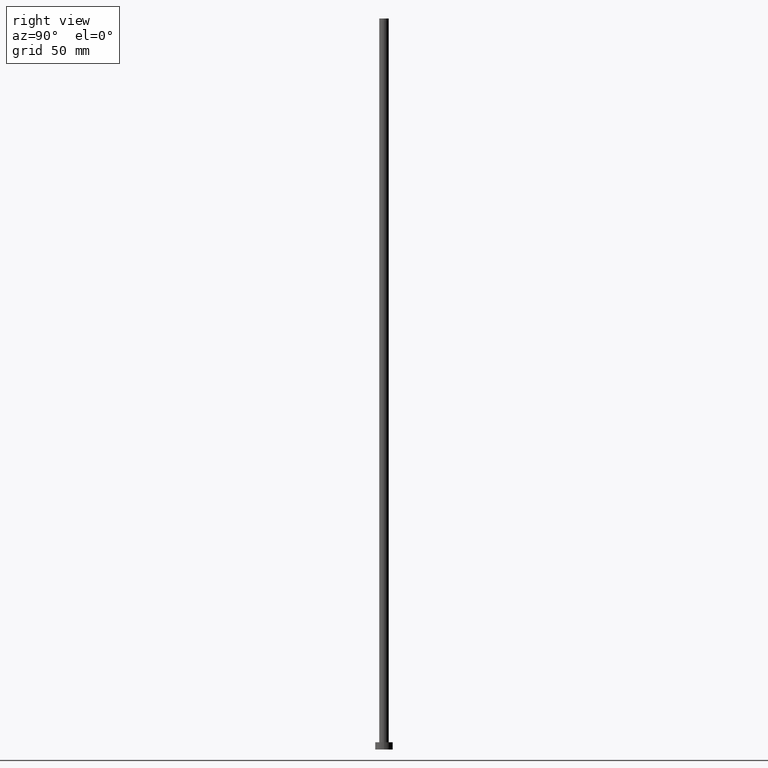
[diagram: clean part render]
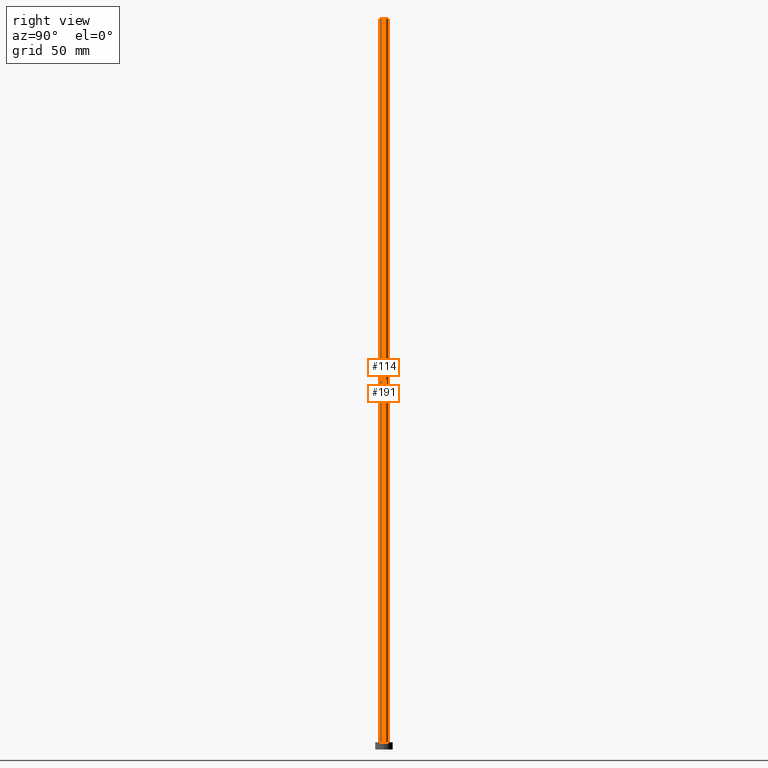
[diagram: same view with one multi-face feature highlighted, each face labeled with its STEP entity id]
A machine part, right view. The highlighted faces form ONE feature: a constant-radius fillet chain: 2 tangent blend faces with common blend radius 3.25 mm. The faces share edges in the B-rep.
Their STEP definitions:
[1] entity #191 (Cylinder):
#3 = VERTEX_POINT ( 'NONE', #56 ) ;
#6 = LINE ( 'NONE', #221, #116 ) ;
#23 = VECTOR ( 'NONE', #172, 1000.000000000000000 ) ;
#36 = VERTEX_POINT ( 'NONE', #40 ) ;
#37 = VERTEX_POINT ( 'NONE', #103 ) ;
#40 = CARTESIAN_POINT ( 'NONE',  ( 3.250000000000000444, 3.980102097228898231E-16, 500.0000000000000000 ) ) ;
#43 = FACE_OUTER_BOUND ( 'NONE', #79, .T. ) ;
#46 = CARTESIAN_POINT ( 'NONE',  ( 0.000000000000000000, 0.000000000000000000, 500.0000000000000000 ) ) ;
#56 = CARTESIAN_POINT ( 'NONE',  ( -3.250000000000000444, 0.000000000000000000, 5.000000000000000000 ) ) ;
#57 = ORIENTED_EDGE ( 'NONE', *, *, #169, .F. ) ;
#63 = CARTESIAN_POINT ( 'NONE',  ( 0.000000000000000000, 0.000000000000000000, 5.000000000000000000 ) ) ;
#66 = CARTESIAN_POINT ( 'NONE',  ( 0.000000000000000000, 0.000000000000000000, 500.0000000000000000 ) ) ;
#77 = AXIS2_PLACEMENT_3D ( 'NONE', #46, #171, #187 ) ;
#79 = EDGE_LOOP ( 'NONE', ( #200, #195, #140, #57 ) ) ;
#83 = DIRECTION ( 'NONE',  ( 1.000000000000000000, 0.000000000000000000, 0.000000000000000000 ) ) ;
#88 = LINE ( 'NONE', #105, #23 ) ;
#103 = CARTESIAN_POINT ( 'NONE',  ( -3.250000000000000444, 0.000000000000000000, 500.0000000000000000 ) ) ;
#105 = CARTESIAN_POINT ( 'NONE',  ( -3.250000000000000444, 0.000000000000000000, 500.0000000000000000 ) ) ;
#107 = DIRECTION ( 'NONE',  ( 0.000000000000000000, 0.000000000000000000, 1.000000000000000000 ) ) ;
#108 = EDGE_CURVE ( 'NONE', #36, #202, #6, .T. ) ;
#116 = VECTOR ( 'NONE', #167, 1000.000000000000000 ) ;
#123 = CARTESIAN_POINT ( 'NONE',  ( 3.250000000000000444, 3.980102097228898231E-16, 5.000000000000000000 ) ) ;
#133 = CIRCLE ( 'NONE', #253, 3.250000000000000444 ) ;
#136 = EDGE_CURVE ( 'NONE', #36, #37, #210, .T. ) ;
#139 = AXIS2_PLACEMENT_3D ( 'NONE', #66, #192, #83 ) ;
#140 = ORIENTED_EDGE ( 'NONE', *, *, #155, .T. ) ;
#155 = EDGE_CURVE ( 'NONE', #202, #3, #133, .T. ) ;
#167 = DIRECTION ( 'NONE',  ( -0.000000000000000000, -0.000000000000000000, -1.000000000000000000 ) ) ;
#169 = EDGE_CURVE ( 'NONE', #37, #3, #88, .T. ) ;
#171 = DIRECTION ( 'NONE',  ( -0.000000000000000000, -0.000000000000000000, -1.000000000000000000 ) ) ;
#172 = DIRECTION ( 'NONE',  ( -0.000000000000000000, -0.000000000000000000, -1.000000000000000000 ) ) ;
#187 = DIRECTION ( 'NONE',  ( -1.000000000000000000, 0.000000000000000000, 0.000000000000000000 ) ) ;
#191 = ADVANCED_FACE ( 'NONE', ( #43 ), #219, .T. ) ;
#192 = DIRECTION ( 'NONE',  ( 0.000000000000000000, 0.000000000000000000, 1.000000000000000000 ) ) ;
#195 = ORIENTED_EDGE ( 'NONE', *, *, #108, .T. ) ;
#200 = ORIENTED_EDGE ( 'NONE', *, *, #136, .F. ) ;
#202 = VERTEX_POINT ( 'NONE', #123 ) ;
#207 = DIRECTION ( 'NONE',  ( 1.000000000000000000, 0.000000000000000000, 0.000000000000000000 ) ) ;
#210 = CIRCLE ( 'NONE', #139, 3.250000000000000444 ) ;
#219 = CYLINDRICAL_SURFACE ( 'NONE', #77, 3.250000000000000444 ) ;
#221 = CARTESIAN_POINT ( 'NONE',  ( 3.250000000000000444, 3.980102097228898231E-16, 500.0000000000000000 ) ) ;
#253 = AXIS2_PLACEMENT_3D ( 'NONE', #63, #107, #207 ) ;
[2] entity #114 (Cylinder):
#3 = VERTEX_POINT ( 'NONE', #56 ) ;
#6 = LINE ( 'NONE', #221, #116 ) ;
#17 = ORIENTED_EDGE ( 'NONE', *, *, #131, .T. ) ;
#18 = AXIS2_PLACEMENT_3D ( 'NONE', #109, #25, #24 ) ;
#23 = VECTOR ( 'NONE', #172, 1000.000000000000000 ) ;
#24 = DIRECTION ( 'NONE',  ( 1.000000000000000000, 0.000000000000000000, 0.000000000000000000 ) ) ;
#25 = DIRECTION ( 'NONE',  ( 0.000000000000000000, 0.000000000000000000, 1.000000000000000000 ) ) ;
#29 = AXIS2_PLACEMENT_3D ( 'NONE', #149, #204, #240 ) ;
#36 = VERTEX_POINT ( 'NONE', #40 ) ;
#37 = VERTEX_POINT ( 'NONE', #103 ) ;
#40 = CARTESIAN_POINT ( 'NONE',  ( 3.250000000000000444, 3.980102097228898231E-16, 500.0000000000000000 ) ) ;
#56 = CARTESIAN_POINT ( 'NONE',  ( -3.250000000000000444, 0.000000000000000000, 5.000000000000000000 ) ) ;
#59 = ORIENTED_EDGE ( 'NONE', *, *, #108, .F. ) ;
#67 = EDGE_CURVE ( 'NONE', #37, #36, #145, .T. ) ;
#73 = DIRECTION ( 'NONE',  ( 1.000000000000000000, 0.000000000000000000, 0.000000000000000000 ) ) ;
#81 = CARTESIAN_POINT ( 'NONE',  ( 0.000000000000000000, 0.000000000000000000, 500.0000000000000000 ) ) ;
#88 = LINE ( 'NONE', #105, #23 ) ;
#103 = CARTESIAN_POINT ( 'NONE',  ( -3.250000000000000444, 0.000000000000000000, 500.0000000000000000 ) ) ;
#105 = CARTESIAN_POINT ( 'NONE',  ( -3.250000000000000444, 0.000000000000000000, 500.0000000000000000 ) ) ;
#108 = EDGE_CURVE ( 'NONE', #36, #202, #6, .T. ) ;
#109 = CARTESIAN_POINT ( 'NONE',  ( 0.000000000000000000, 0.000000000000000000, 5.000000000000000000 ) ) ;
#114 = ADVANCED_FACE ( 'NONE', ( #124 ), #203, .T. ) ;
#116 = VECTOR ( 'NONE', #167, 1000.000000000000000 ) ;
#121 = ORIENTED_EDGE ( 'NONE', *, *, #67, .F. ) ;
#123 = CARTESIAN_POINT ( 'NONE',  ( 3.250000000000000444, 3.980102097228898231E-16, 5.000000000000000000 ) ) ;
#124 = FACE_OUTER_BOUND ( 'NONE', #216, .T. ) ;
#131 = EDGE_CURVE ( 'NONE', #3, #202, #244, .T. ) ;
#145 = CIRCLE ( 'NONE', #183, 3.250000000000000444 ) ;
#149 = CARTESIAN_POINT ( 'NONE',  ( 0.000000000000000000, 0.000000000000000000, 500.0000000000000000 ) ) ;
#163 = DIRECTION ( 'NONE',  ( 0.000000000000000000, 0.000000000000000000, 1.000000000000000000 ) ) ;
#167 = DIRECTION ( 'NONE',  ( -0.000000000000000000, -0.000000000000000000, -1.000000000000000000 ) ) ;
#169 = EDGE_CURVE ( 'NONE', #37, #3, #88, .T. ) ;
#172 = DIRECTION ( 'NONE',  ( -0.000000000000000000, -0.000000000000000000, -1.000000000000000000 ) ) ;
#183 = AXIS2_PLACEMENT_3D ( 'NONE', #81, #163, #73 ) ;
#202 = VERTEX_POINT ( 'NONE', #123 ) ;
#203 = CYLINDRICAL_SURFACE ( 'NONE', #29, 3.250000000000000444 ) ;
#204 = DIRECTION ( 'NONE',  ( -0.000000000000000000, -0.000000000000000000, -1.000000000000000000 ) ) ;
#211 = ORIENTED_EDGE ( 'NONE', *, *, #169, .T. ) ;
#216 = EDGE_LOOP ( 'NONE', ( #59, #121, #211, #17 ) ) ;
#221 = CARTESIAN_POINT ( 'NONE',  ( 3.250000000000000444, 3.980102097228898231E-16, 500.0000000000000000 ) ) ;
#240 = DIRECTION ( 'NONE',  ( -1.000000000000000000, 0.000000000000000000, 0.000000000000000000 ) ) ;
#244 = CIRCLE ( 'NONE', #18, 3.250000000000000444 ) ;